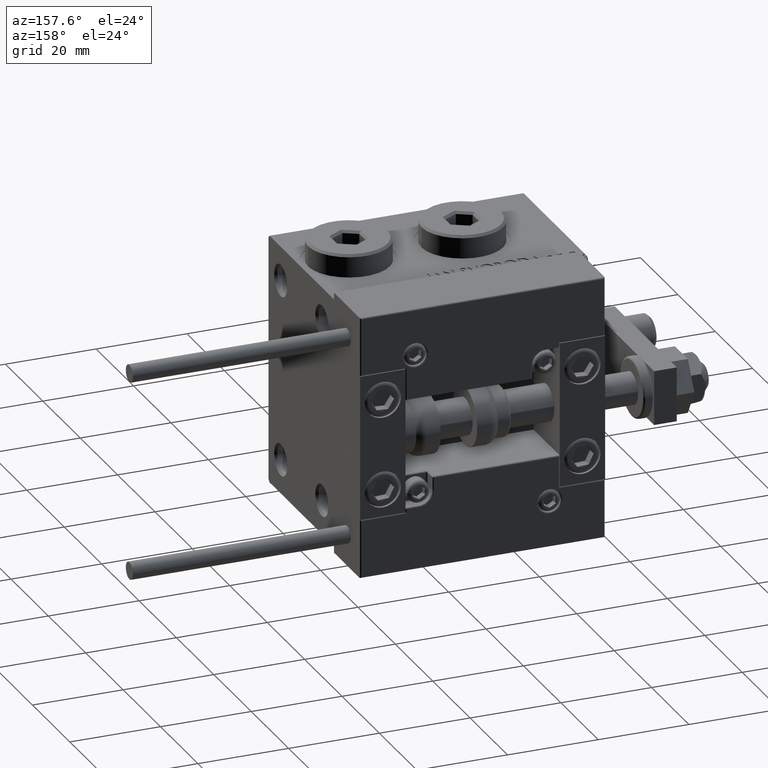
[diagram: clean part render]
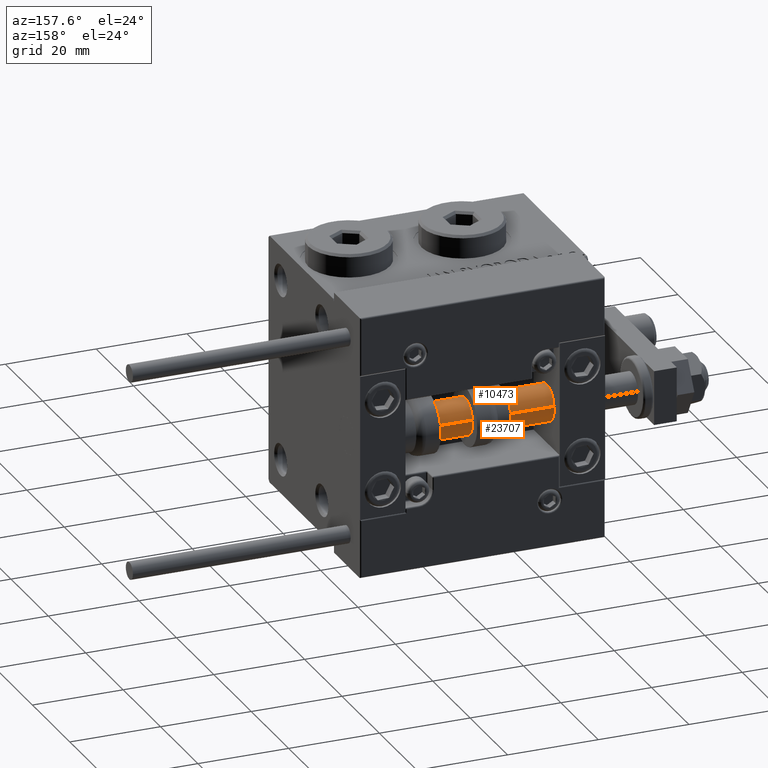
[diagram: same view with one multi-face feature highlighted, each face labeled with its STEP entity id]
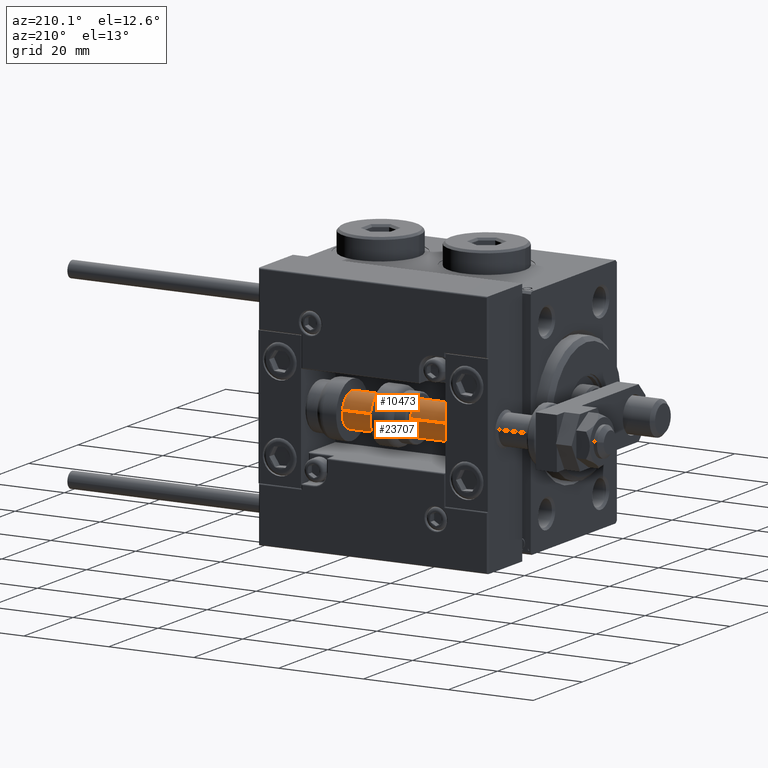
[diagram: same view with one multi-face feature highlighted, each face labeled with its STEP entity id]
A machine part, auxiliary view. The highlighted faces form ONE feature: a constant-radius fillet chain: 2 tangent blend faces with common blend radius 4 mm. The faces share edges in the B-rep.
A second angle (auxiliary view) of the same feature is appended — it is thin or edge-on in the first view.
Their STEP definitions:
[1] entity #23707 (Cylinder):
#2242 = EDGE_CURVE ( 'NONE', #11973, #52799, #21448, .T. ) ;
#3429 = CIRCLE ( 'NONE', #15415, 4.000000000000000000 ) ;
#4950 = DIRECTION ( 'NONE',  ( 1.000000000000000000, 0.000000000000000000, 0.000000000000000000 ) ) ;
#6741 = DIRECTION ( 'NONE',  ( 1.000000000000000000, 0.000000000000000000, 0.000000000000000000 ) ) ;
#11220 = CARTESIAN_POINT ( 'NONE',  ( -4.000000000000000000, 0.000000000000000000, 56.00000000000000000 ) ) ;
#11973 = VERTEX_POINT ( 'NONE', #15919 ) ;
#15415 = AXIS2_PLACEMENT_3D ( 'NONE', #23615, #35142, #6741 ) ;
#15919 = CARTESIAN_POINT ( 'NONE',  ( 4.000000000000000000, 4.898587196589412829E-16, 56.00000000000000000 ) ) ;
#18564 = EDGE_CURVE ( 'NONE', #36726, #52799, #43216, .T. ) ;
#18634 = VECTOR ( 'NONE', #39858, 1000.000000000000000 ) ;
#19102 = ORIENTED_EDGE ( 'NONE', *, *, #18564, .T. ) ;
#19701 = EDGE_LOOP ( 'NONE', ( #34857, #37142, #44189, #19102 ) ) ;
#21448 = LINE ( 'NONE', #49836, #45308 ) ;
#23615 = CARTESIAN_POINT ( 'NONE',  ( 0.000000000000000000, 0.000000000000000000, 56.00000000000000000 ) ) ;
#23707 = ADVANCED_FACE ( 'NONE', ( #24253 ), #32276, .T. ) ;
#23897 = VERTEX_POINT ( 'NONE', #39920 ) ;
#23942 = CARTESIAN_POINT ( 'NONE',  ( 4.000000000000000000, 4.898587196589412829E-16, 2.000000000000036415 ) ) ;
#24253 = FACE_OUTER_BOUND ( 'NONE', #19701, .T. ) ;
#24408 = EDGE_CURVE ( 'NONE', #23897, #36726, #35318, .T. ) ;
#28512 = CARTESIAN_POINT ( 'NONE',  ( 0.000000000000000000, 0.000000000000000000, 56.00000000000000000 ) ) ;
#29736 = DIRECTION ( 'NONE',  ( -0.000000000000000000, -0.000000000000000000, -1.000000000000000000 ) ) ;
#32276 = CYLINDRICAL_SURFACE ( 'NONE', #34828, 4.000000000000000000 ) ;
#34828 = AXIS2_PLACEMENT_3D ( 'NONE', #28512, #48622, #40590 ) ;
#34857 = ORIENTED_EDGE ( 'NONE', *, *, #2242, .F. ) ;
#35142 = DIRECTION ( 'NONE',  ( 0.000000000000000000, 0.000000000000000000, 1.000000000000000000 ) ) ;
#35318 = LINE ( 'NONE', #11220, #18634 ) ;
#36726 = VERTEX_POINT ( 'NONE', #41523 ) ;
#37142 = ORIENTED_EDGE ( 'NONE', *, *, #46453, .F. ) ;
#37355 = CARTESIAN_POINT ( 'NONE',  ( 0.000000000000000000, 0.000000000000000000, 2.000000000000036415 ) ) ;
#39858 = DIRECTION ( 'NONE',  ( -0.000000000000000000, -0.000000000000000000, -1.000000000000000000 ) ) ;
#39920 = CARTESIAN_POINT ( 'NONE',  ( -4.000000000000000000, 0.000000000000000000, 56.00000000000000000 ) ) ;
#40590 = DIRECTION ( 'NONE',  ( -1.000000000000000000, 0.000000000000000000, 0.000000000000000000 ) ) ;
#41523 = CARTESIAN_POINT ( 'NONE',  ( -4.000000000000000000, 0.000000000000000000, 2.000000000000036415 ) ) ;
#41922 = DIRECTION ( 'NONE',  ( -0.000000000000000000, -0.000000000000000000, 1.000000000000000000 ) ) ;
#43216 = CIRCLE ( 'NONE', #45778, 4.000000000000000000 ) ;
#44189 = ORIENTED_EDGE ( 'NONE', *, *, #24408, .T. ) ;
#45308 = VECTOR ( 'NONE', #29736, 1000.000000000000000 ) ;
#45778 = AXIS2_PLACEMENT_3D ( 'NONE', #37355, #41922, #4950 ) ;
#46453 = EDGE_CURVE ( 'NONE', #23897, #11973, #3429, .T. ) ;
#48622 = DIRECTION ( 'NONE',  ( -0.000000000000000000, -0.000000000000000000, -1.000000000000000000 ) ) ;
#49836 = CARTESIAN_POINT ( 'NONE',  ( 4.000000000000000000, 4.898587196589412829E-16, 56.00000000000000000 ) ) ;
#52799 = VERTEX_POINT ( 'NONE', #23942 ) ;
[2] entity #10473 (Cylinder):
#253 = AXIS2_PLACEMENT_3D ( 'NONE', #20524, #20266, #3388 ) ;
#1482 = ORIENTED_EDGE ( 'NONE', *, *, #7413, .F. ) ;
#2242 = EDGE_CURVE ( 'NONE', #11973, #52799, #21448, .T. ) ;
#3388 = DIRECTION ( 'NONE',  ( -1.000000000000000000, 0.000000000000000000, 0.000000000000000000 ) ) ;
#7413 = EDGE_CURVE ( 'NONE', #11973, #23897, #10467, .T. ) ;
#10467 = CIRCLE ( 'NONE', #41228, 4.000000000000000000 ) ;
#10473 = ADVANCED_FACE ( 'NONE', ( #44651 ), #52412, .T. ) ;
#11220 = CARTESIAN_POINT ( 'NONE',  ( -4.000000000000000000, 0.000000000000000000, 56.00000000000000000 ) ) ;
#11973 = VERTEX_POINT ( 'NONE', #15919 ) ;
#12371 = ORIENTED_EDGE ( 'NONE', *, *, #24408, .F. ) ;
#15339 = ORIENTED_EDGE ( 'NONE', *, *, #2242, .T. ) ;
#15919 = CARTESIAN_POINT ( 'NONE',  ( 4.000000000000000000, 4.898587196589412829E-16, 56.00000000000000000 ) ) ;
#18634 = VECTOR ( 'NONE', #39858, 1000.000000000000000 ) ;
#18704 = CARTESIAN_POINT ( 'NONE',  ( 0.000000000000000000, 0.000000000000000000, 56.00000000000000000 ) ) ;
#18946 = CIRCLE ( 'NONE', #49723, 4.000000000000000000 ) ;
#20266 = DIRECTION ( 'NONE',  ( -0.000000000000000000, -0.000000000000000000, -1.000000000000000000 ) ) ;
#20524 = CARTESIAN_POINT ( 'NONE',  ( 0.000000000000000000, 0.000000000000000000, 56.00000000000000000 ) ) ;
#21448 = LINE ( 'NONE', #49836, #45308 ) ;
#23897 = VERTEX_POINT ( 'NONE', #39920 ) ;
#23942 = CARTESIAN_POINT ( 'NONE',  ( 4.000000000000000000, 4.898587196589412829E-16, 2.000000000000036415 ) ) ;
#24408 = EDGE_CURVE ( 'NONE', #23897, #36726, #35318, .T. ) ;
#25485 = ORIENTED_EDGE ( 'NONE', *, *, #48842, .T. ) ;
#26331 = DIRECTION ( 'NONE',  ( 1.000000000000000000, 0.000000000000000000, 0.000000000000000000 ) ) ;
#26592 = DIRECTION ( 'NONE',  ( -0.000000000000000000, -0.000000000000000000, 1.000000000000000000 ) ) ;
#29736 = DIRECTION ( 'NONE',  ( -0.000000000000000000, -0.000000000000000000, -1.000000000000000000 ) ) ;
#31346 = EDGE_LOOP ( 'NONE', ( #1482, #15339, #25485, #12371 ) ) ;
#35318 = LINE ( 'NONE', #11220, #18634 ) ;
#36726 = VERTEX_POINT ( 'NONE', #41523 ) ;
#39303 = DIRECTION ( 'NONE',  ( 1.000000000000000000, 0.000000000000000000, 0.000000000000000000 ) ) ;
#39858 = DIRECTION ( 'NONE',  ( -0.000000000000000000, -0.000000000000000000, -1.000000000000000000 ) ) ;
#39920 = CARTESIAN_POINT ( 'NONE',  ( -4.000000000000000000, 0.000000000000000000, 56.00000000000000000 ) ) ;
#41228 = AXIS2_PLACEMENT_3D ( 'NONE', #18704, #51363, #39303 ) ;
#41523 = CARTESIAN_POINT ( 'NONE',  ( -4.000000000000000000, 0.000000000000000000, 2.000000000000036415 ) ) ;
#44651 = FACE_OUTER_BOUND ( 'NONE', #31346, .T. ) ;
#45308 = VECTOR ( 'NONE', #29736, 1000.000000000000000 ) ;
#47222 = CARTESIAN_POINT ( 'NONE',  ( 0.000000000000000000, 0.000000000000000000, 2.000000000000036415 ) ) ;
#48842 = EDGE_CURVE ( 'NONE', #52799, #36726, #18946, .T. ) ;
#49723 = AXIS2_PLACEMENT_3D ( 'NONE', #47222, #26592, #26331 ) ;
#49836 = CARTESIAN_POINT ( 'NONE',  ( 4.000000000000000000, 4.898587196589412829E-16, 56.00000000000000000 ) ) ;
#51363 = DIRECTION ( 'NONE',  ( 0.000000000000000000, 0.000000000000000000, 1.000000000000000000 ) ) ;
#52412 = CYLINDRICAL_SURFACE ( 'NONE', #253, 4.000000000000000000 ) ;
#52799 = VERTEX_POINT ( 'NONE', #23942 ) ;